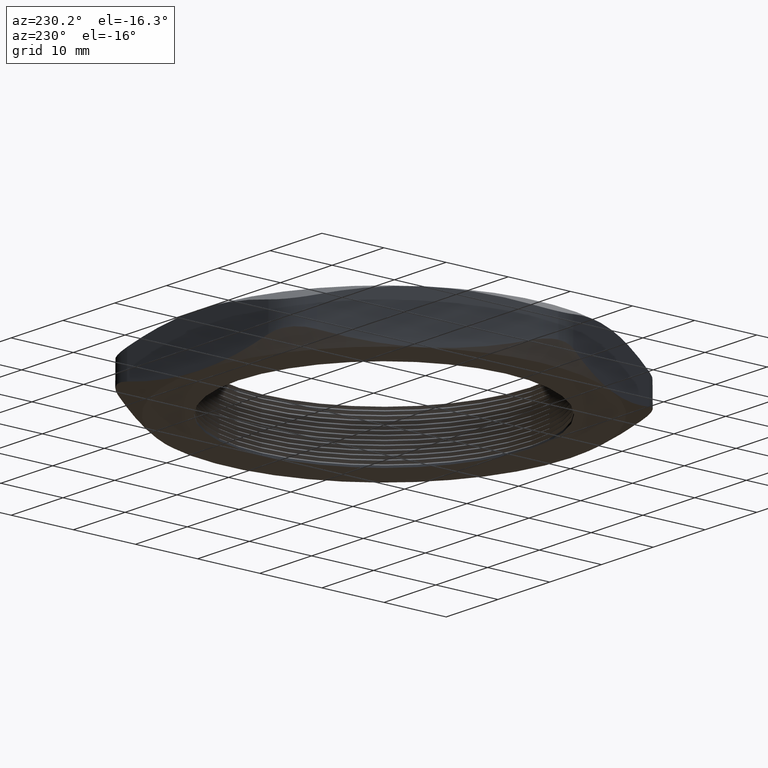
[diagram: clean part render]
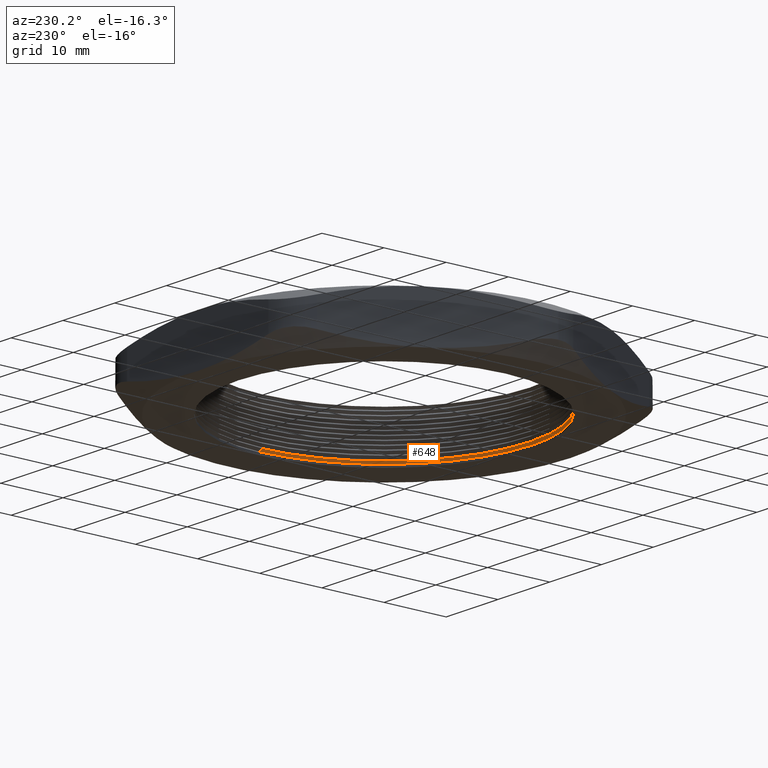
[diagram: same view with one face highlighted and labeled with its STEP entity id]
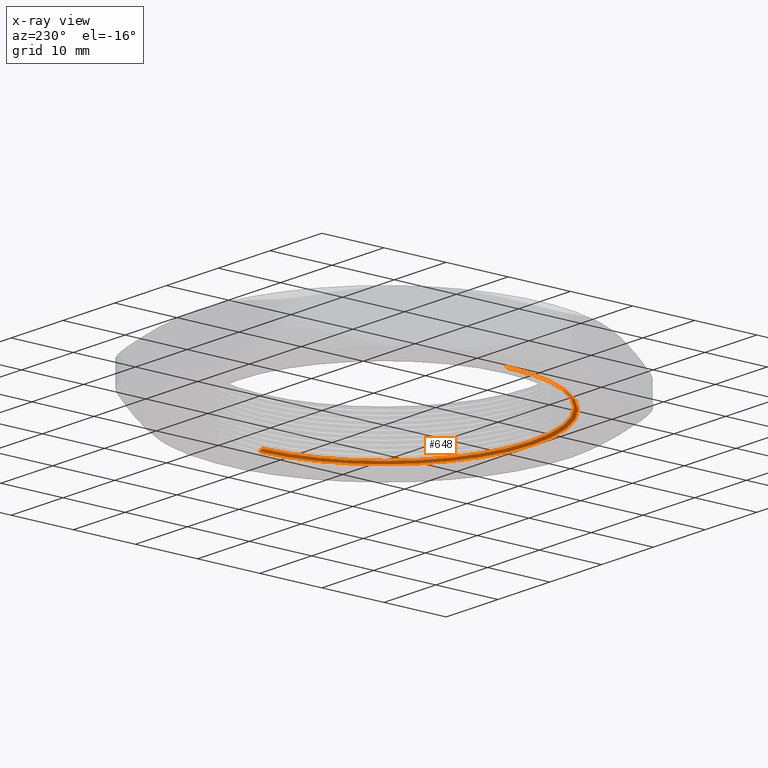
[diagram: x-ray of the same camera — body ghosted, the highlighted face saturated]
A machine part, auxiliary view. The second image highlights one B-rep face of the part: STEP entity #648.
The next image is the same camera in x-ray: the body ghosted, the highlighted face saturated — about 0% of this face is hidden behind the body in this view.
In plain terms, the highlighted conical surface has half-angle 60 deg.
Its self-contained STEP definition (entity closure, byte-faithful):
#588 = ORIENTED_EDGE ( 'NONE', *, *, #589, .F. ) ;
#589 = EDGE_CURVE ( 'NONE', #652, #602, #883, .T. ) ;
#602 = VERTEX_POINT ( 'NONE', #918 ) ;
#643 = VERTEX_POINT ( 'NONE', #1020 ) ;
#645 = EDGE_CURVE ( 'NONE', #602, #643, #1018, .T. ) ;
#648 = ADVANCED_FACE ( 'NONE', ( #1010 ), #1008, .F. ) ;
#649 = EDGE_LOOP ( 'NONE', ( #650, #654, #656, #588 ) ) ;
#650 = ORIENTED_EDGE ( 'NONE', *, *, #651, .T. ) ;
#651 = EDGE_CURVE ( 'NONE', #652, #653, #1003, .T. ) ;
#652 = VERTEX_POINT ( 'NONE', #999 ) ;
#653 = VERTEX_POINT ( 'NONE', #998 ) ;
#654 = ORIENTED_EDGE ( 'NONE', *, *, #655, .T. ) ;
#655 = EDGE_CURVE ( 'NONE', #653, #643, #997, .T. ) ;
#656 = ORIENTED_EDGE ( 'NONE', *, *, #645, .F. ) ;
#880 = DIRECTION ( 'NONE',  ( -0.8660254037844429300, 0.0000000000000000000, -0.4999999999999923400 ) ) ;
#881 = VECTOR ( 'NONE', #880, 39.37007874015748900 ) ;
#882 = CARTESIAN_POINT ( 'NONE',  ( -0.9450000000000002800, 0.0000000000000000000, 0.02345299461620762100 ) ) ;
#883 = LINE ( 'NONE', #882, #881 ) ;
#918 = CARTESIAN_POINT ( 'NONE',  ( -0.9450000000000002800, 0.0000000000000000000, 0.02345299461620762100 ) ) ;
#994 = DIRECTION ( 'NONE',  ( 0.8660254037844429300, 1.060575238724912100E-016, -0.4999999999999923400 ) ) ;
#995 = VECTOR ( 'NONE', #994, 39.37007874015748900 ) ;
#996 = CARTESIAN_POINT ( 'NONE',  ( 0.9450000000000002800, 1.157291225194249100E-016, 0.02345299461620762100 ) ) ;
#997 = LINE ( 'NONE', #996, #995 ) ;
#998 = CARTESIAN_POINT ( 'NONE',  ( 0.9250000000000002700, 1.132798289211302000E-016, 0.03499999999999993400 ) ) ;
#999 = CARTESIAN_POINT ( 'NONE',  ( -0.9250000000000002700, 0.0000000000000000000, 0.03499999999999993400 ) ) ;
#1000 = DIRECTION ( 'NONE',  ( 1.000000000000000000, 0.0000000000000000000, 0.0000000000000000000 ) ) ;
#1001 = DIRECTION ( 'NONE',  ( 0.0000000000000000000, 0.0000000000000000000, 1.000000000000000000 ) ) ;
#1002 = AXIS2_PLACEMENT_3D ( 'NONE', #1009, #1001, #1000 ) ;
#1003 = CIRCLE ( 'NONE', #1002, 0.9250000000000002700 ) ;
#1004 = DIRECTION ( 'NONE',  ( -1.000000000000000000, 0.0000000000000000000, 0.0000000000000000000 ) ) ;
#1005 = DIRECTION ( 'NONE',  ( 0.0000000000000000000, 0.0000000000000000000, -1.000000000000000000 ) ) ;
#1006 = CARTESIAN_POINT ( 'NONE',  ( 0.0000000000000000000, 0.0000000000000000000, 0.02345299461620762100 ) ) ;
#1007 = AXIS2_PLACEMENT_3D ( 'NONE', #1006, #1005, #1004 ) ;
#1008 = CONICAL_SURFACE ( 'NONE', #1007, 0.9450000000000002800, 1.047197551196606500 ) ;
#1009 = CARTESIAN_POINT ( 'NONE',  ( 0.0000000000000000000, 0.0000000000000000000, 0.03499999999999993400 ) ) ;
#1010 = FACE_OUTER_BOUND ( 'NONE', #649, .T. ) ;
#1014 = DIRECTION ( 'NONE',  ( 1.000000000000000000, 0.0000000000000000000, 0.0000000000000000000 ) ) ;
#1015 = DIRECTION ( 'NONE',  ( 0.0000000000000000000, 0.0000000000000000000, 1.000000000000000000 ) ) ;
#1016 = CARTESIAN_POINT ( 'NONE',  ( 0.0000000000000000000, 0.0000000000000000000, 0.02345299461620762100 ) ) ;
#1017 = AXIS2_PLACEMENT_3D ( 'NONE', #1016, #1015, #1014 ) ;
#1018 = CIRCLE ( 'NONE', #1017, 0.9450000000000002800 ) ;
#1020 = CARTESIAN_POINT ( 'NONE',  ( 0.9450000000000002800, 1.157291225194249100E-016, 0.02345299461620762100 ) ) ;